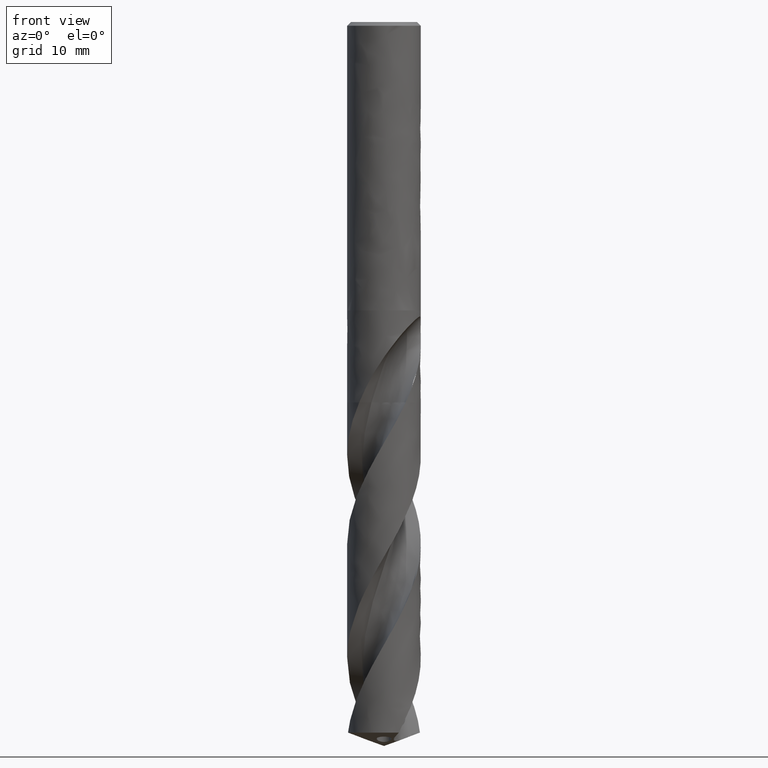
[diagram: clean part render]
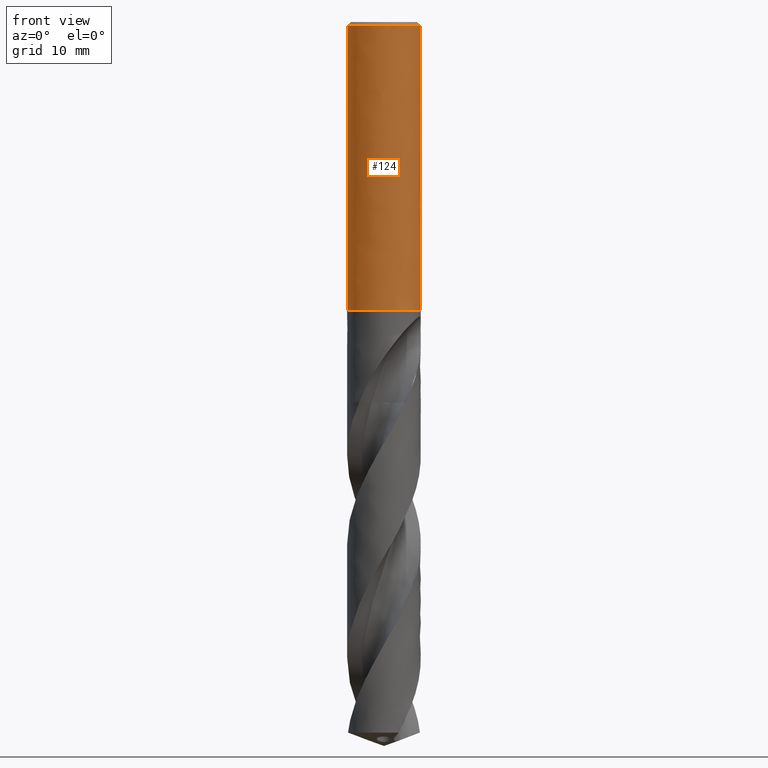
[diagram: same view with one face highlighted and labeled with its STEP entity id]
A machine part, front view. The second image highlights one B-rep face of the part: STEP entity #124.
In plain terms, the highlighted face is a freeform B-spline surface patch.
Its self-contained STEP definition (entity closure, byte-faithful):
#73 = VERTEX_POINT('', #74);
#74 = CARTESIAN_POINT('', (-6., 4.04133443718627E-16, -0.600000000000001));
#90 = EDGE_CURVE('', #73, #73, #91, .T.);
#91 = CIRCLE('', #92, 6.);
#92 = AXIS2_PLACEMENT_3D('', #93, #94, #95);
#93 = CARTESIAN_POINT('', (2.24963967399277E-33, 3.67394039744209E-17, -0.600000000000001));
#94 = DIRECTION('', (3.74939945665464E-33, 6.12323399573677E-17, -1.));
#95 = DIRECTION('', (-1., 6.12323399573677E-17, 0.));
#124 = ADVANCED_FACE('', (#125, #144), #339, .T.);
#125 = FACE_OUTER_BOUND('', #126, .T.);
#126 = EDGE_LOOP('', (#127, #135, #142, #143));
#127 = ORIENTED_EDGE('', *, *, #128, .F.);
#128 = EDGE_CURVE('', #129, #73, #131, .T.);
#129 = VERTEX_POINT('', #130);
#130 = CARTESIAN_POINT('', (-6., 3.24531401774049E-15, -47.));
#131 = LINE('', #132, #133);
#132 = CARTESIAN_POINT('', (-6., 3.24531401774049E-15, -47.));
#133 = VECTOR('', #134, 46.4);
#134 = DIRECTION('', (0., -2.84118057402186E-15, 46.4));
#135 = ORIENTED_EDGE('', *, *, #136, .F.);
#136 = EDGE_CURVE('', #129, #129, #137, .T.);
#137 = CIRCLE('', #138, 6.);
#138 = AXIS2_PLACEMENT_3D('', #139, #140, #141);
#139 = CARTESIAN_POINT('', (1.76221774462768E-31, 2.87791997799628E-15, -47.));
#140 = DIRECTION('', (3.74939945665464E-33, 6.12323399573677E-17, -1.));
#141 = DIRECTION('', (-1., 6.12323399573677E-17, 0.));
#142 = ORIENTED_EDGE('', *, *, #128, .T.);
#143 = ORIENTED_EDGE('', *, *, #90, .T.);
#144 = FACE_BOUND('', #145, .T.);
#145 = EDGE_LOOP('', (#146, #238, #246, #333));
#146 = ORIENTED_EDGE('', *, *, #147, .F.);
#147 = EDGE_CURVE('', #148, #150, #152, .T.);
#148 = VERTEX_POINT('', #149);
#149 = CARTESIAN_POINT('', (-4.07921561087423, 4.4, -18.5));
#150 = VERTEX_POINT('', #151);
#151 = CARTESIAN_POINT('', (4.07921561087423, 4.4, -18.5));
#152 = B_SPLINE_CURVE_WITH_KNOTS('', 3, (#153, #154, #155, #156, #157, #158, #159, #160, #161, #162, #163, #164, #165, #166, #167, #168, #169, #170, #171, #172, #173, #174, #175, #176, #177, #178, #179, #180, #181, #182, #183, #184, #185, #186, #187, #188, #189, #190, #191, #192, #193, #194, #195, #196, #197, #198, #199, #200, #201, #202, #203, #204, #205, #206, #207, #208, #209, #210, #211, #212, #213, #214, #215, #216, #217, #218, #219, #220, #221, #222, #223, #224, #225, #226, #227, #228, #229, #230, #231, #232, #233, #234, #235, #236, #237), .UNSPECIFIED., .F., .U., (4, 3, 3, 3, 3, 3, 3, 3, 3, 3, 3, 3, 3, 3, 3, 3, 3, 3, 3, 3, 3, 3, 3, 3, 3, 3, 3, 3, 4), (0., 0.252528164982001, 0.696302962445136, 1.1402945821051, 1.58454104344382, 2.02908503294032, 2.47397183993455, 2.77031065522297, 3.06676568600971, 3.36334316241505, 3.66004733001567, 3.95687982725978, 4.25383918654578, 4.55092056662182, 4.84668162437949, 5.14244268213716, 5.4395240622132, 5.7364834214992, 6.03331591874331, 6.33002008634392, 6.62659756274926, 6.92305259353601, 7.21939140882443, 7.66427821581866, 8.10882220531516, 8.55306866665388, 8.99706028631385, 9.44083508377698, 9.69336324875899), .UNSPECIFIED.);
#153 = CARTESIAN_POINT('', (-4.07921561087423, 4.4, -18.5));
#154 = CARTESIAN_POINT('', (-4.02845131220746, 4.44706329990831, -18.4521080380756));
#155 = CARTESIAN_POINT('', (-3.97655807735761, 4.49353945650021, -18.4048135575308));
#156 = CARTESIAN_POINT('', (-3.92353945924902, 4.53936538645173, -18.3581807524223));
#157 = CARTESIAN_POINT('', (-3.83036836083079, 4.61989657307896, -18.2762316215456));
#158 = CARTESIAN_POINT('', (-3.73364869199151, 4.69848132293276, -18.1962631991195));
#159 = CARTESIAN_POINT('', (-3.63343184365589, 4.77474324309775, -18.1186585053574));
#160 = CARTESIAN_POINT('', (-3.53316603076136, 4.85104242377677, -18.0410158950207));
#161 = CARTESIAN_POINT('', (-3.42929151463677, 4.92509751242185, -17.9656568893282));
#162 = CARTESIAN_POINT('', (-3.32191613869428, 4.99648608198631, -17.8930113531657));
#163 = CARTESIAN_POINT('', (-3.21447913158614, 5.06791562706045, -17.8203241200216));
#164 = CARTESIAN_POINT('', (-3.10340403823706, 5.13676248497672, -17.7502650484231));
#165 = CARTESIAN_POINT('', (-2.98887732179034, 5.20255825102305, -17.6833107904681));
#166 = CARTESIAN_POINT('', (-2.8742739025988, 5.26839808290842, -17.6163116907895));
#167 = CARTESIAN_POINT('', (-2.75605059652716, 5.33127457957415, -17.5523281029383));
#168 = CARTESIAN_POINT('', (-2.63449928745334, 5.39067838999959, -17.4918783462786));
#169 = CARTESIAN_POINT('', (-2.51285424206409, 5.45012801066231, -17.4313819727829));
#170 = CARTESIAN_POINT('', (-2.38767641856268, 5.5061944341025, -17.3743283657927));
#171 = CARTESIAN_POINT('', (-2.2593928894653, 5.55834001937932, -17.3212646327041));
#172 = CARTESIAN_POINT('', (-2.17394331344712, 5.59307416011022, -17.2859189143078));
#173 = CARTESIAN_POINT('', (-2.08703253413476, 5.62610405559013, -17.2523074484784));
#174 = CARTESIAN_POINT('', (-1.99882607577488, 5.65726915735874, -17.2205936105159));
#175 = CARTESIAN_POINT('', (-1.91058502539741, 5.68844648117739, -17.188867335305));
#176 = CARTESIAN_POINT('', (-1.82096798723843, 5.71778510232651, -17.159012137524));
#177 = CARTESIAN_POINT('', (-1.73017554338986, 5.74512772608718, -17.1311880814419));
#178 = CARTESIAN_POINT('', (-1.63934559929405, 5.77248164324527, -17.1033525331151));
#179 = CARTESIAN_POINT('', (-1.54725106907462, 5.79786399616015, -17.0775232631379));
#180 = CARTESIAN_POINT('', (-1.45412928109495, 5.82112601082148, -17.0538516650431));
#181 = CARTESIAN_POINT('', (-1.36096771359201, 5.84439796248974, -17.0301699549766));
#182 = CARTESIAN_POINT('', (-1.26668101162223, 5.86557151484437, -17.008623591565));
#183 = CARTESIAN_POINT('', (-1.1715431013361, 5.88451244893847, -16.9893491570011));
#184 = CARTESIAN_POINT('', (-1.07636404227133, 5.90346157531157, -16.9700663859134));
#185 = CARTESIAN_POINT('', (-0.980227817186137, 5.9201966535508, -16.9530366465752));
#186 = CARTESIAN_POINT('', (-0.883442451457368, 5.93460440425165, -16.9383752129459));
#187 = CARTESIAN_POINT('', (-0.786615721022124, 5.94901831262287, -16.9237075132258));
#188 = CARTESIAN_POINT('', (-0.689026914371761, 5.96111925406702, -16.9113935057503));
#189 = CARTESIAN_POINT('', (-0.591013008611254, 5.97082101755297, -16.9015209195021));
#190 = CARTESIAN_POINT('', (-0.492958828874387, 5.98052676749973, -16.8916442766019));
#191 = CARTESIAN_POINT('', (-0.394361221890409, 5.9878427681628, -16.8841994602402));
#192 = CARTESIAN_POINT('', (-0.295578376007082, 5.99271502940337, -16.8792414111813));
#193 = CARTESIAN_POINT('', (-0.197234551903102, 5.99756563679524, -16.8743053972389));
#194 = CARTESIAN_POINT('', (-0.0985870192525594, 6., -16.8718281712446));
#195 = CARTESIAN_POINT('', (-2.92492744907833E-15, 6., -16.8718281712446));
#196 = CARTESIAN_POINT('', (0.0985870192525548, 6., -16.8718281712446));
#197 = CARTESIAN_POINT('', (0.197234551903098, 5.99756563679524, -16.8743053972389));
#198 = CARTESIAN_POINT('', (0.29557837600708, 5.99271502940337, -16.8792414111813));
#199 = CARTESIAN_POINT('', (0.394361221890407, 5.9878427681628, -16.8841994602402));
#200 = CARTESIAN_POINT('', (0.492958828874384, 5.98052676749973, -16.8916442766019));
#201 = CARTESIAN_POINT('', (0.591013008611251, 5.97082101755297, -16.9015209195021));
#202 = CARTESIAN_POINT('', (0.689026914371758, 5.96111925406702, -16.9113935057503));
#203 = CARTESIAN_POINT('', (0.78661572102212, 5.94901831262287, -16.9237075132258));
#204 = CARTESIAN_POINT('', (0.883442451457365, 5.93460440425165, -16.9383752129459));
#205 = CARTESIAN_POINT('', (0.980227817186133, 5.9201966535508, -16.9530366465752));
#206 = CARTESIAN_POINT('', (1.07636404227133, 5.90346157531157, -16.9700663859134));
#207 = CARTESIAN_POINT('', (1.17154310133609, 5.88451244893847, -16.9893491570011));
#208 = CARTESIAN_POINT('', (1.26668101162223, 5.86557151484437, -17.008623591565));
#209 = CARTESIAN_POINT('', (1.360967713592, 5.84439796248974, -17.0301699549766));
#210 = CARTESIAN_POINT('', (1.45412928109494, 5.82112601082148, -17.0538516650431));
#211 = CARTESIAN_POINT('', (1.54725106907461, 5.79786399616015, -17.0775232631379));
#212 = CARTESIAN_POINT('', (1.63934559929404, 5.77248164324527, -17.1033525331151));
#213 = CARTESIAN_POINT('', (1.73017554338986, 5.74512772608718, -17.1311880814419));
#214 = CARTESIAN_POINT('', (1.82096798723843, 5.71778510232651, -17.159012137524));
#215 = CARTESIAN_POINT('', (1.9105850253974, 5.68844648117739, -17.188867335305));
#216 = CARTESIAN_POINT('', (1.99882607577488, 5.65726915735874, -17.2205936105159));
#217 = CARTESIAN_POINT('', (2.08703253413476, 5.62610405559013, -17.2523074484784));
#218 = CARTESIAN_POINT('', (2.17394331344712, 5.59307416011022, -17.2859189143078));
#219 = CARTESIAN_POINT('', (2.25939288946529, 5.55834001937932, -17.3212646327041));
#220 = CARTESIAN_POINT('', (2.38767641856268, 5.5061944341025, -17.3743283657927));
#221 = CARTESIAN_POINT('', (2.51285424206409, 5.45012801066231, -17.4313819727829));
#222 = CARTESIAN_POINT('', (2.63449928745334, 5.39067838999959, -17.4918783462786));
#223 = CARTESIAN_POINT('', (2.75605059652716, 5.33127457957416, -17.5523281029383));
#224 = CARTESIAN_POINT('', (2.8742739025988, 5.26839808290843, -17.6163116907895));
#225 = CARTESIAN_POINT('', (2.98887732179034, 5.20255825102305, -17.6833107904681));
#226 = CARTESIAN_POINT('', (3.10340403823706, 5.13676248497672, -17.7502650484231));
#227 = CARTESIAN_POINT('', (3.21447913158614, 5.06791562706045, -17.8203241200216));
#228 = CARTESIAN_POINT('', (3.32191613869428, 4.99648608198631, -17.8930113531657));
#229 = CARTESIAN_POINT('', (3.42929151463677, 4.92509751242185, -17.9656568893282));
#230 = CARTESIAN_POINT('', (3.53316603076136, 4.85104242377677, -18.0410158950207));
#231 = CARTESIAN_POINT('', (3.63343184365589, 4.77474324309775, -18.1186585053574));
#232 = CARTESIAN_POINT('', (3.73364869199151, 4.69848132293276, -18.1962631991195));
#233 = CARTESIAN_POINT('', (3.83036836083079, 4.61989657307896, -18.2762316215456));
#234 = CARTESIAN_POINT('', (3.92353945924902, 4.53936538645173, -18.3581807524223));
#235 = CARTESIAN_POINT('', (3.97655807735762, 4.4935394565002, -18.4048135575308));
#236 = CARTESIAN_POINT('', (4.02845131220746, 4.44706329990831, -18.4521080380756));
#237 = CARTESIAN_POINT('', (4.07921561087423, 4.4, -18.5));
#238 = ORIENTED_EDGE('', *, *, #239, .T.);
#239 = EDGE_CURVE('', #148, #240, #242, .T.);
#240 = VERTEX_POINT('', #241);
#241 = CARTESIAN_POINT('', (-4.07921561087423, 4.4, -26.5));
#242 = LINE('', #243, #244);
#243 = CARTESIAN_POINT('', (-4.07921561087423, 4.4, -18.5));
#244 = VECTOR('', #245, 8.00000000000001);
#245 = DIRECTION('', (-8.88178419700125E-16, 0., -8.00000000000001));
#246 = ORIENTED_EDGE('', *, *, #247, .T.);
#247 = EDGE_CURVE('', #240, #248, #250, .T.);
#248 = VERTEX_POINT('', #249);
#249 = CARTESIAN_POINT('', (4.07921561087423, 4.4, -26.5));
#250 = B_SPLINE_CURVE_WITH_KNOTS('', 3, (#251, #252, #253, #254, #255, #256, #257, #258, #259, #260, #261, #262, #263, #264, #265, #266, #267, #268, #269, #270, #271, #272, #273, #274, #275, #276, #277, #278, #279, #280, #281, #282, #283, #284, #285, #286, #287, #288, #289, #290, #291, #292, #293, #294, #295, #296, #297, #298, #299, #300, #301, #302, #303, #304, #305, #306, #307, #308, #309, #310, #311, #312, #313, #314, #315, #316, #317, #318, #319, #320, #321, #322, #323, #324, #325, #326, #327, #328, #329, #330, #331, #332), .UNSPECIFIED., .F., .U., (4, 3, 3, 3, 3, 3, 3, 3, 3, 3, 3, 3, 3, 3, 3, 3, 3, 3, 3, 3, 3, 3, 3, 3, 3, 3, 3, 4), (0., 0.443342399663827, 0.886545636833214, 1.32958786504548, 1.77244318478925, 2.21508166617877, 2.65746991921298, 3.0995725400833, 3.5413547763039, 3.83602657676748, 4.13058610128575, 4.4250318714497, 4.62151501666331, 4.84649677051964, 5.14225782827732, 5.43933920835336, 5.73629856763935, 6.03313106488347, 6.32983523248408, 6.62641270888942, 6.92286773967616, 7.21920655496459, 7.66409336195881, 8.10863735145531, 8.55288381279404, 8.996875432454, 9.44065022991714, 9.69317839489914), .UNSPECIFIED.);
#251 = CARTESIAN_POINT('', (-4.07921561087423, 4.4, -26.5));
#252 = CARTESIAN_POINT('', (-3.99009301344126, 4.48262506607505, -26.5840798780828));
#253 = CARTESIAN_POINT('', (-3.89746999004795, 4.56345861274838, -26.6663366927777));
#254 = CARTESIAN_POINT('', (-3.80137376549427, 4.64215009397717, -26.7464137258401));
#255 = CARTESIAN_POINT('', (-3.70530770496353, 4.72081687442654, -26.8264656232067));
#256 = CARTESIAN_POINT('', (-3.60567507499127, 4.79742012425749, -26.9044176565604));
#257 = CARTESIAN_POINT('', (-3.50254877718792, 4.87156566859361, -26.9798687106327));
#258 = CARTESIAN_POINT('', (-3.39945994359121, 4.94568427698756, -27.0552923544912));
#259 = CARTESIAN_POINT('', (-3.29276254731489, 5.01742999477435, -27.1283013273252));
#260 = CARTESIAN_POINT('', (-3.18259405082664, 5.08636364288317, -27.1984487172653));
#261 = CARTESIAN_POINT('', (-3.07247203167993, 5.15526820960477, -27.2685665137707));
#262 = CARTESIAN_POINT('', (-2.95873778715688, 5.22145138140552, -27.3359149986855));
#263 = CARTESIAN_POINT('', (-2.84161670673264, 5.28443133099668, -27.4000038609985));
#264 = CARTESIAN_POINT('', (-2.72455297312393, 5.34738044327368, -27.4640613430326));
#265 = CARTESIAN_POINT('', (-2.60392993007725, 5.40722166596681, -27.5249562136497));
#266 = CARTESIAN_POINT('', (-2.4800878796862, 5.4634388537839, -27.5821632395845));
#267 = CARTESIAN_POINT('', (-2.35631583855527, 5.51962426141233, -27.6393379257643));
#268 = CARTESIAN_POINT('', (-2.22911594889545, 5.57228333564817, -27.6929241890138));
#269 = CARTESIAN_POINT('', (-2.09897135694727, 5.62088242562654, -27.7423789822675));
#270 = CARTESIAN_POINT('', (-1.96891079408702, 5.66945013714235, -27.7918018445657));
#271 = CARTESIAN_POINT('', (-1.83565628537042, 5.71405431098099, -27.8371913816213));
#272 = CARTESIAN_POINT('', (-1.6998574866198, 5.75417105456425, -27.8780144764737));
#273 = CARTESIAN_POINT('', (-1.56415709907174, 5.79425872618949, -27.9188079874865));
#274 = CARTESIAN_POINT('', (-1.42562096784116, 5.82994915689483, -27.9551268336306));
#275 = CARTESIAN_POINT('', (-1.28507687616643, 5.86076594161075, -27.9864862215852));
#276 = CARTESIAN_POINT('', (-1.19133299707204, 5.88132094969443, -28.0074031497737));
#277 = CARTESIAN_POINT('', (-1.09657649444595, 5.89973707876045, -28.0261435388611));
#278 = CARTESIAN_POINT('', (-1.00109588724331, 5.91589443994267, -28.042585389051));
#279 = CARTESIAN_POINT('', (-0.905651660092688, 5.93204564484188, -28.0590209745618));
#280 = CARTESIAN_POINT('', (-0.809376785197187, 5.94595753641382, -28.0731778182757));
#281 = CARTESIAN_POINT('', (-0.712589485964345, 5.95753440816695, -28.0849585285592));
#282 = CARTESIAN_POINT('', (-0.615839564496659, 5.96910680911041, -28.0967346893137));
#283 = CARTESIAN_POINT('', (-0.518464684260807, 5.97835919784588, -28.1061499884935));
#284 = CARTESIAN_POINT('', (-0.420806179111677, 5.98522532237689, -28.1131370075773));
#285 = CARTESIAN_POINT('', (-0.355638830170386, 5.98980707521555, -28.1177994331387));
#286 = CARTESIAN_POINT('', (-0.290302106735289, 5.99333029033027, -28.1213846828865));
#287 = CARTESIAN_POINT('', (-0.224901311003018, 5.99578346843089, -28.123881055058));
#288 = CARTESIAN_POINT('', (-0.150014553100964, 5.99859246413889, -28.1267395098573));
#289 = CARTESIAN_POINT('', (-0.0749939179521119, 6., -28.1281718287554));
#290 = CARTESIAN_POINT('', (-1.0408164986578E-15, 6., -28.1281718287554));
#291 = CARTESIAN_POINT('', (0.098587019252556, 6., -28.1281718287554));
#292 = CARTESIAN_POINT('', (0.197234551903099, 5.99756563679524, -28.1256946027611));
#293 = CARTESIAN_POINT('', (0.29557837600708, 5.99271502940338, -28.1207585888187));
#294 = CARTESIAN_POINT('', (0.394361221890407, 5.98784276816281, -28.1158005397598));
#295 = CARTESIAN_POINT('', (0.492958828874385, 5.98052676749973, -28.1083557233981));
#296 = CARTESIAN_POINT('', (0.591013008611252, 5.97082101755297, -28.0984790804979));
#297 = CARTESIAN_POINT('', (0.689026914371759, 5.96111925406702, -28.0886064942497));
#298 = CARTESIAN_POINT('', (0.786615721022122, 5.94901831262287, -28.0762924867742));
#299 = CARTESIAN_POINT('', (0.883442451457367, 5.93460440425165, -28.0616247870541));
#300 = CARTESIAN_POINT('', (0.980227817186135, 5.9201966535508, -28.0469633534248));
#301 = CARTESIAN_POINT('', (1.07636404227133, 5.90346157531157, -28.0299336140866));
#302 = CARTESIAN_POINT('', (1.17154310133609, 5.88451244893847, -28.0106508429989));
#303 = CARTESIAN_POINT('', (1.26668101162223, 5.86557151484437, -27.991376408435));
#304 = CARTESIAN_POINT('', (1.360967713592, 5.84439796248974, -27.9698300450234));
#305 = CARTESIAN_POINT('', (1.45412928109494, 5.82112601082148, -27.9461483349569));
#306 = CARTESIAN_POINT('', (1.54725106907461, 5.79786399616015, -27.9224767368621));
#307 = CARTESIAN_POINT('', (1.63934559929405, 5.77248164324527, -27.8966474668849));
#308 = CARTESIAN_POINT('', (1.73017554338986, 5.74512772608718, -27.8688119185581));
#309 = CARTESIAN_POINT('', (1.82096798723843, 5.71778510232651, -27.840987862476));
#310 = CARTESIAN_POINT('', (1.91058502539741, 5.68844648117739, -27.811132664695));
#311 = CARTESIAN_POINT('', (1.99882607577488, 5.65726915735874, -27.7794063894841));
#312 = CARTESIAN_POINT('', (2.08703253413476, 5.62610405559013, -27.7476925515216));
#313 = CARTESIAN_POINT('', (2.17394331344712, 5.59307416011022, -27.7140810856922));
#314 = CARTESIAN_POINT('', (2.25939288946529, 5.55834001937932, -27.6787353672959));
#315 = CARTESIAN_POINT('', (2.38767641856268, 5.5061944341025, -27.6256716342073));
#316 = CARTESIAN_POINT('', (2.51285424206408, 5.45012801066231, -27.5686180272171));
#317 = CARTESIAN_POINT('', (2.63449928745334, 5.39067838999959, -27.5081216537214));
#318 = CARTESIAN_POINT('', (2.75605059652716, 5.33127457957416, -27.4476718970617));
#319 = CARTESIAN_POINT('', (2.8742739025988, 5.26839808290843, -27.3836883092105));
#320 = CARTESIAN_POINT('', (2.98887732179034, 5.20255825102305, -27.3166892095319));
#321 = CARTESIAN_POINT('', (3.10340403823706, 5.13676248497672, -27.2497349515769));
#322 = CARTESIAN_POINT('', (3.21447913158613, 5.06791562706046, -27.1796758799784));
#323 = CARTESIAN_POINT('', (3.32191613869428, 4.99648608198631, -27.1069886468343));
#324 = CARTESIAN_POINT('', (3.42929151463677, 4.92509751242186, -27.0343431106718));
#325 = CARTESIAN_POINT('', (3.53316603076135, 4.85104242377678, -26.9589841049793));
#326 = CARTESIAN_POINT('', (3.63343184365589, 4.77474324309775, -26.8813414946426));
#327 = CARTESIAN_POINT('', (3.73364869199151, 4.69848132293276, -26.8037368008805));
#328 = CARTESIAN_POINT('', (3.83036836083079, 4.61989657307896, -26.7237683784544));
#329 = CARTESIAN_POINT('', (3.92353945924902, 4.53936538645173, -26.6418192475777));
#330 = CARTESIAN_POINT('', (3.97655807735761, 4.49353945650021, -26.5951864424692));
#331 = CARTESIAN_POINT('', (4.02845131220746, 4.44706329990831, -26.5478919619244));
#332 = CARTESIAN_POINT('', (4.07921561087423, 4.4, -26.5));
#333 = ORIENTED_EDGE('', *, *, #334, .F.);
#334 = EDGE_CURVE('', #150, #248, #335, .T.);
#335 = LINE('', #336, #337);
#336 = CARTESIAN_POINT('', (4.07921561087423, 4.4, -18.5));
#337 = VECTOR('', #338, 8.);
#338 = DIRECTION('', (-8.88178419700125E-16, 0., -8.));
#339 = (
   BOUNDED_SURFACE ()
   B_SPLINE_SURFACE (1, 2, ((#340, #341, #342, #343, #344, #345, #346, #347, #348), (#349, #350, #351, #352, #353, #354, #355, #356, #357)), .UNSPECIFIED., .F., .T., .U.)
   B_SPLINE_SURFACE_WITH_KNOTS ((2, 2), (3, 2, 2, 2, 3), (-0.0459459459459459, 1.), (0., 0.25, 0.5, 0.75, 1.), .UNSPECIFIED.)
   GEOMETRIC_REPRESENTATION_ITEM ()
   RATIONAL_B_SPLINE_SURFACE (((1., 0.707106781186548, 1., 0.707106781186548, 1., 0.707106781186548, 1., 0.707106781186548, 1.), (1., 0.707106781186548, 1., 0.707106781186548, 1., 0.707106781186548, 1., 0.707106781186548, 1.)))
   REPRESENTATION_ITEM ('')
   SURFACE ()
);
#340 = CARTESIAN_POINT('', (-6., 3.24776331133878E-15, -47.04));
#341 = CARTESIAN_POINT('', (-6., 6., -47.04));
#342 = CARTESIAN_POINT('', (-4.44089209850063E-15, 6.00000000000001, -47.04));
#343 = CARTESIAN_POINT('', (5.99999999999999, 6.00000000000001, -47.04));
#344 = CARTESIAN_POINT('', (6., 1.05752352738648E-14, -47.04));
#345 = CARTESIAN_POINT('', (6., -5.99999999999999, -47.04));
#346 = CARTESIAN_POINT('', (3.62136794351382E-15, -5.99999999999999, -47.04));
#347 = CARTESIAN_POINT('', (-6., -6., -47.04));
#348 = CARTESIAN_POINT('', (-6., 3.24776331133878E-15, -47.04));
#349 = CARTESIAN_POINT('', (-6., 4.04133443718627E-16, -0.600000000000001));
#350 = CARTESIAN_POINT('', (-6., 6., -0.600000000000001));
#351 = CARTESIAN_POINT('', (-4.44089209850063E-15, 6., -0.600000000000001));
#352 = CARTESIAN_POINT('', (5.99999999999999, 6.00000000000001, -0.600000000000001));
#353 = CARTESIAN_POINT('', (6., 7.73160540624466E-15, -0.600000000000001));
#354 = CARTESIAN_POINT('', (6., -5.99999999999999, -0.600000000000002));
#355 = CARTESIAN_POINT('', (3.62136794351382E-15, -6., -0.600000000000002));
#356 = CARTESIAN_POINT('', (-6., -6., -0.600000000000002));
#357 = CARTESIAN_POINT('', (-6., 4.04133443718627E-16, -0.600000000000001));